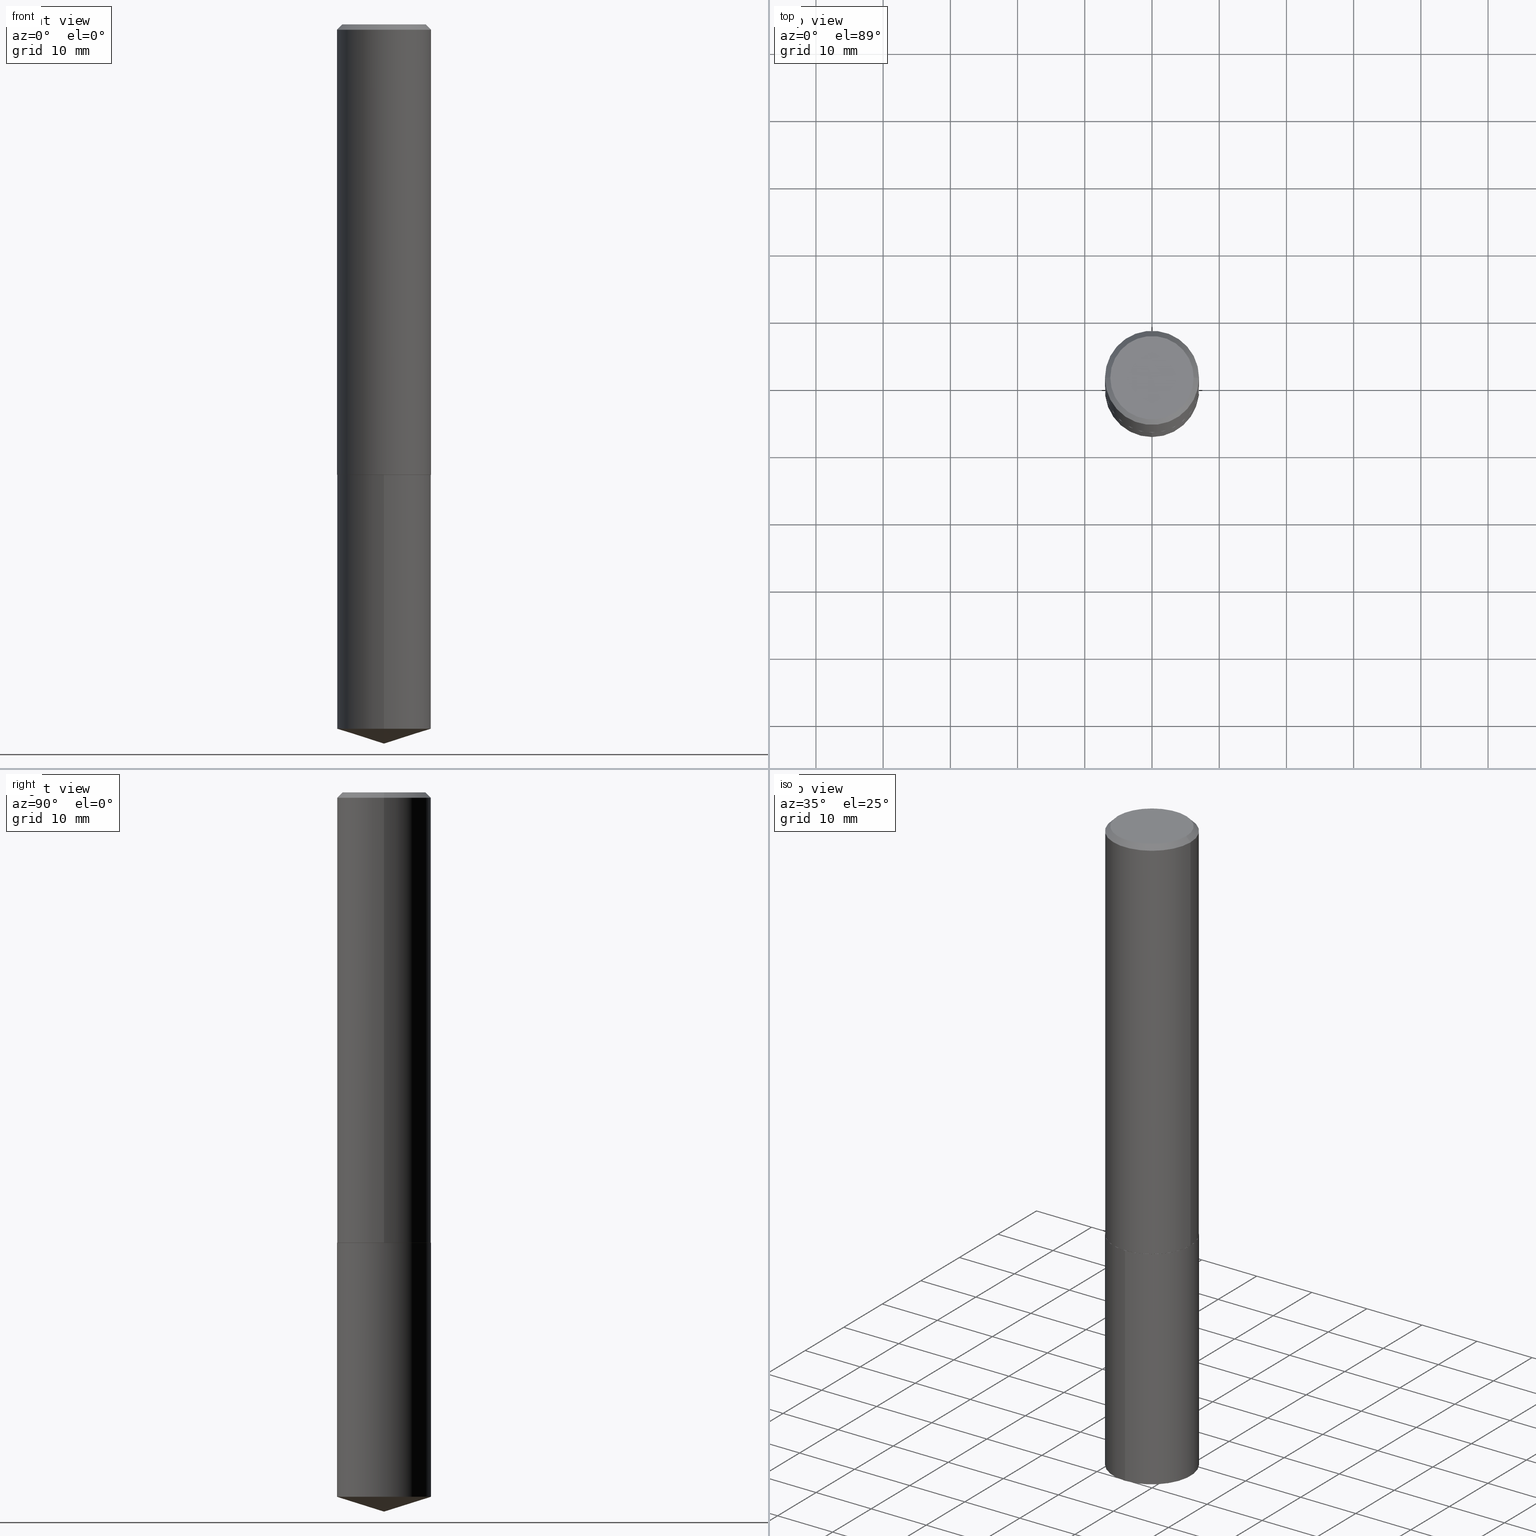
[diagram: canonical four-view strip — front | top / right | iso, engineering-drawing reading convention]
A machine part, canonical four-view strip (front | top / right | iso — engineering-drawing reading convention). The complete STEP part file that produces these views, byte-faithful:
ISO-10303-21;
HEADER;
FILE_DESCRIPTION (( 'STEP AP203' ),
    '1' );
FILE_NAME ('62116.STEP',
    '2024-04-23T06:14:14',
    ( '' ),
    ( '' ),
    'SwSTEP 2.0',
    'SolidWorks 2023',
    '' );
FILE_SCHEMA (( 'CONFIG_CONTROL_DESIGN' ));
ENDSEC;

DATA;
#1 = VECTOR ( 'NONE', #62, 39.37007874015748854 ) ;
#2 = AXIS2_PLACEMENT_3D ( 'NONE', #159, #371, #249 ) ;
#3 = CARTESIAN_POINT ( 'NONE',  ( 0.2756000000000000116, -2.033613305809184449E-15, -0.03125000000000021511 ) ) ;
#4 = CARTESIAN_POINT ( 'NONE',  ( -0.2751000000000002887, -7.252477182350298634E-15, -2.637799999999999923 ) ) ;
#5 = FACE_OUTER_BOUND ( 'NONE', #215, .T. ) ;
#6 = ADVANCED_FACE ( 'NONE', ( #25 ), #212, .T. ) ;
#7 = DIRECTION ( 'NONE',  ( -2.445468806185136597E-29, 3.491481338843145583E-15, 1.000000000000000000 ) ) ;
#8 = DIRECTION ( 'NONE',  ( 1.000000000000000000, -6.982962677686267499E-15, 4.876176775795935793E-29 ) ) ;
#9 = PRODUCT_DEFINITION_FORMATION_WITH_SPECIFIED_SOURCE ( 'ANY', '', #160, .NOT_KNOWN. ) ;
#10 = ORIENTED_EDGE ( 'NONE', *, *, #257, .T. ) ;
#11 = CARTESIAN_POINT ( 'NONE',  ( 1.958255779754937169E-15, 0.2755999999999907968, -2.637800000000000811 ) ) ;
#12 = EDGE_CURVE ( 'NONE', #295, #26, #334, .T. ) ;
#13 = DIRECTION ( 'NONE',  ( 1.000000000000000000, -6.982962677686264344E-15, 0.000000000000000000 ) ) ;
#14 = ORIENTED_EDGE ( 'NONE', *, *, #129, .T. ) ;
#15 = DIRECTION ( 'NONE',  ( -6.982962677686265922E-15, -1.000000000000000000, 3.964946289788480896E-15 ) ) ;
#16 = CONICAL_SURFACE ( 'NONE', #47, 124.8659371009155450, 1.265363707695892792 ) ;
#17 = AXIS2_PLACEMENT_3D ( 'NONE', #228, #173, #230 ) ;
#18 = DIRECTION ( 'NONE',  ( -2.444090534757923530E-29, 3.493455101973252593E-15, 1.000000000000000000 ) ) ;
#19 = CYLINDRICAL_SURFACE ( 'NONE', #246, 0.2756000000000000116 ) ;
#20 = AXIS2_PLACEMENT_3D ( 'NONE', #45, #81, #381 ) ;
#21 = COORDINATED_UNIVERSAL_TIME_OFFSET ( 5, 0, .BEHIND. ) ;
#22 = APPROVAL ( #326, 'UNSPECIFIED' ) ;
#23 = APPROVAL_STATUS ( 'not_yet_approved' ) ;
#24 = ORIENTED_EDGE ( 'NONE', *, *, #201, .T. ) ;
#25 = FACE_OUTER_BOUND ( 'NONE', #48, .T. ) ;
#26 = VERTEX_POINT ( 'NONE', #244 ) ;
#27 = PERSON_AND_ORGANIZATION ( #98, #174 ) ;
#28 = AXIS2_PLACEMENT_3D ( 'NONE', #165, #33, #8 ) ;
#29 = EDGE_CURVE ( 'NONE', #288, #61, #364, .T. ) ;
#30 = EDGE_LOOP ( 'NONE', ( #14, #237 ) ) ;
#31 = ORIENTED_EDGE ( 'NONE', *, *, #287, .F. ) ;
#32 = ORIENTED_EDGE ( 'NONE', *, *, #353, .T. ) ;
#33 = DIRECTION ( 'NONE',  ( -2.445468806185136597E-29, 3.491481338843145583E-15, 1.000000000000000000 ) ) ;
#34 = AXIS2_PLACEMENT_3D ( 'NONE', #192, #70, #306 ) ;
#35 = FACE_OUTER_BOUND ( 'NONE', #101, .T. ) ;
#36 = VERTEX_POINT ( 'NONE', #302 ) ;
#37 = DIRECTION ( 'NONE',  ( -6.982962677686266711E-15, -1.000000000000000000, 3.500519750498691021E-15 ) ) ;
#38 = ORIENTED_EDGE ( 'NONE', *, *, #171, .T. ) ;
#39 = CARTESIAN_POINT ( 'NONE',  ( 0.2756000000000001782, -1.924504513970336532E-15, 1.343874319409360828E-29 ) ) ;
#40 = LINE ( 'NONE', #248, #293 ) ;
#41 = CARTESIAN_POINT ( 'NONE',  ( -8.592442541040112697E-28, 1.228262798697039134E-13, 35.15747874015747954 ) ) ;
#42 = ADVANCED_FACE ( 'NONE', ( #372 ), #308, .F. ) ;
#43 = PRODUCT_DEFINITION_SHAPE ( 'NONE', 'NONE',  #361 ) ;
#44 = CARTESIAN_POINT ( 'NONE',  ( -5.188552583287908695E-46, 7.407877980016506241E-32, 2.121700579522789356E-17 ) ) ;
#45 = CARTESIAN_POINT ( 'NONE',  ( 6.450657616955153231E-29, -9.209829475600448681E-15, -2.637799999999999923 ) ) ;
#46 = CARTESIAN_POINT ( 'NONE',  ( 6.450657616955153231E-29, -9.209829475600448681E-15, -2.637799999999999923 ) ) ;
#47 = AXIS2_PLACEMENT_3D ( 'NONE', #41, #169, #281 ) ;
#48 = EDGE_LOOP ( 'NONE', ( #190, #109, #54, #66 ) ) ;
#49 = AXIS2_PLACEMENT_3D ( 'NONE', #143, #18, #15 ) ;
#50 = ADVANCED_FACE ( 'NONE', ( #108 ), #83, .T. ) ;
#51 = PERSON_AND_ORGANIZATION ( #98, #174 ) ;
#52 = CC_DESIGN_PERSON_AND_ORGANIZATION_ASSIGNMENT ( #241, #323, ( #9 ) ) ;
#53 = PERSON_AND_ORGANIZATION_ROLE ( 'classification_officer' ) ;
#54 = ORIENTED_EDGE ( 'NONE', *, *, #353, .F. ) ;
#55 = PERSON_AND_ORGANIZATION_ROLE ( 'creator' ) ;
#56 = DIMENSIONAL_EXPONENTS ( 1.000000000000000000, 0.000000000000000000, 0.000000000000000000, 0.000000000000000000, 0.000000000000000000, 0.000000000000000000, 0.000000000000000000 ) ;
#57 = EDGE_LOOP ( 'NONE', ( #140, #365 ) ) ;
#58 = CIRCLE ( 'NONE', #34, 0.2756000000000003447 ) ;
#59 = SECURITY_CLASSIFICATION ( '', '', #89 ) ;
#60 = ADVANCED_FACE ( 'NONE', ( #170 ), #276, .F. ) ;
#61 = VERTEX_POINT ( 'NONE', #3 ) ;
#62 = DIRECTION ( 'NONE',  ( 6.776566513254258926E-15, 0.9537169507482290420, 0.3007057995042661247 ) ) ;
#63 = ORIENTED_EDGE ( 'NONE', *, *, #129, .F. ) ;
#64 = CARTESIAN_POINT ( 'NONE',  ( 1.030331075538032453E-28, -1.470611617780333154E-14, -4.212600000000000122 ) ) ;
#65 = CARTESIAN_POINT ( 'NONE',  ( -5.188552583287908695E-46, 7.407877980016506241E-32, 2.121700579522789356E-17 ) ) ;
#66 = ORIENTED_EDGE ( 'NONE', *, *, #171, .F. ) ;
#67 = CONICAL_SURFACE ( 'NONE', #229, 0.2756000000000000116, 0.7853981633974446153 ) ;
#68 = CARTESIAN_POINT ( 'NONE',  ( 1.958255779754900487E-15, 0.2755999999999907968, -2.637800000000000811 ) ) ;
#69 = FACE_OUTER_BOUND ( 'NONE', #300, .T. ) ;
#70 = DIRECTION ( 'NONE',  ( -2.445468806185136597E-29, 3.491481338843145583E-15, 1.000000000000000000 ) ) ;
#71 = UNCERTAINTY_MEASURE_WITH_UNIT (LENGTH_MEASURE( 1.000000000000000082E-05 ), #145, 'distance_accuracy_value', 'NONE');
#72 = CARTESIAN_POINT ( 'NONE',  ( 6.449434882552060429E-29, -9.208083734931026389E-15, -2.637299999999999756 ) ) ;
#73 = EDGE_CURVE ( 'NONE', #254, #126, #225, .T. ) ;
#74 = CARTESIAN_POINT ( 'NONE',  ( 6.449434882552060429E-29, -9.208083734931026389E-15, -2.637299999999999756 ) ) ;
#75 = DIRECTION ( 'NONE',  ( -1.000000000000000000, 6.982962677686267499E-15, 0.000000000000000000 ) ) ;
#76 = AXIS2_PLACEMENT_3D ( 'NONE', #142, #115, #261 ) ;
#77 = FACE_OUTER_BOUND ( 'NONE', #219, .T. ) ;
#78 = FACE_OUTER_BOUND ( 'NONE', #57, .T. ) ;
#79 = CARTESIAN_POINT ( 'NONE',  ( 6.450657616955153231E-29, -9.209829475600448681E-15, -2.637799999999999923 ) ) ;
#80 = ADVANCED_FACE ( 'NONE', ( #5 ), #344, .T. ) ;
#81 = DIRECTION ( 'NONE',  ( -2.445468806185136597E-29, 3.491481338843145583E-15, 1.000000000000000000 ) ) ;
#82 = CARTESIAN_POINT ( 'NONE',  ( -1.924504513970270662E-15, -0.2756000000000092265, -2.637799999999999034 ) ) ;
#83 = CONICAL_SURFACE ( 'NONE', #387, 0.2756000000000000116, 0.7853981633974446153 ) ;
#84 = CIRCLE ( 'NONE', #147, 0.2756000000000003447 ) ;
#85 = CARTESIAN_POINT ( 'NONE',  ( 0.2756000000000003447, -1.113258824890136292E-14, -2.637299999999999756 ) ) ;
#86 = DIRECTION ( 'NONE',  ( 1.000000000000000000, 0.000000000000000000, 0.000000000000000000 ) ) ;
#87 = EDGE_CURVE ( 'NONE', #210, #218, #259, .T. ) ;
#88 = PERSON_AND_ORGANIZATION_ROLE ( 'creator' ) ;
#89 = SECURITY_CLASSIFICATION_LEVEL ( 'unclassified' ) ;
#90 = ORIENTED_EDGE ( 'NONE', *, *, #287, .T. ) ;
#91 = COORDINATED_UNIVERSAL_TIME_OFFSET ( 5, 0, .BEHIND. ) ;
#92 = APPROVAL ( #23, 'UNSPECIFIED' ) ;
#93 = PERSON_AND_ORGANIZATION ( #98, #174 ) ;
#94 = ORIENTED_EDGE ( 'NONE', *, *, #87, .T. ) ;
#95 = VECTOR ( 'NONE', #220, 39.37007874015748143 ) ;
#96 = CARTESIAN_POINT ( 'NONE',  ( 0.2756000000000000116, -1.999862040024683603E-15, -0.03125000000000021511 ) ) ;
#97 = EDGE_LOOP ( 'NONE', ( #213, #162, #226 ) ) ;
#98 = PERSON ( 'UNSPECIFIED', 'UNSPECIFIED', 'UNSPECIFIED', ('UNSPECIFIED'), ('UNSPECIFIED'), ('UNSPECIFIED') ) ;
#99 = CARTESIAN_POINT ( 'NONE',  ( 6.450657616955153231E-29, -9.209829475600448681E-15, -2.637799999999999923 ) ) ;
#100 = CARTESIAN_POINT ( 'NONE',  ( 6.450657616955153231E-29, -9.209829475600448681E-15, -2.637799999999999923 ) ) ;
#101 = EDGE_LOOP ( 'NONE', ( #278, #335, #90, #153 ) ) ;
#102 = AXIS2_PLACEMENT_3D ( 'NONE', #251, #222, #203 ) ;
#103 = DIRECTION ( 'NONE',  ( -6.982962677686265922E-15, -1.000000000000000000, 3.964946289788480896E-15 ) ) ;
#104 = CIRCLE ( 'NONE', #118, 0.2443500000000000116 ) ;
#105 = ORIENTED_EDGE ( 'NONE', *, *, #144, .T. ) ;
#106 = FACE_OUTER_BOUND ( 'NONE', #195, .T. ) ;
#107 = EDGE_LOOP ( 'NONE', ( #327, #63, #322, #267 ) ) ;
#108 = FACE_OUTER_BOUND ( 'NONE', #107, .T. ) ;
#109 = ORIENTED_EDGE ( 'NONE', *, *, #73, .T. ) ;
#110 = DIRECTION ( 'NONE',  ( -2.445468806185136597E-29, 3.491481338843145583E-15, 1.000000000000000000 ) ) ;
#111 = LOCAL_TIME ( 2, 14, 14.00000000000000000, #149 ) ;
#112 = MANIFOLD_SOLID_BREP ( 'Body-Move/Copy2[2]', #141 ) ;
#113 = DIRECTION ( 'NONE',  ( 1.000000000000000000, -6.982962677686265922E-15, 4.876176775795935793E-29 ) ) ;
#114 = EDGE_CURVE ( 'NONE', #218, #303, #40, .T. ) ;
#115 = DIRECTION ( 'NONE',  ( -2.444090534757923530E-29, 3.493455101973252593E-15, 1.000000000000000000 ) ) ;
#116 = FACE_OUTER_BOUND ( 'NONE', #252, .T. ) ;
#117 = CONICAL_SURFACE ( 'NONE', #102, 0.2756000000000003447, 0.7853981633973459164 ) ;
#118 = AXIS2_PLACEMENT_3D ( 'NONE', #44, #110, #313 ) ;
#119 = ADVANCED_FACE ( 'NONE', ( #221 ), #16, .T. ) ;
#120 = CARTESIAN_POINT ( 'NONE',  ( -1.924504513970270662E-15, -0.2756000000000092265, -2.637799999999999034 ) ) ;
#121 = APPROVAL_ROLE ( '' ) ;
#122 = ORIENTED_EDGE ( 'NONE', *, *, #12, .F. ) ;
#123 = CONICAL_SURFACE ( 'NONE', #363, 0.2756000000000003447, 0.7853981633973459164 ) ;
#124 = CALENDAR_DATE ( 2024, 23, 4 ) ;
#125 = COORDINATED_UNIVERSAL_TIME_OFFSET ( 5, 0, .BEHIND. ) ;
#126 = VERTEX_POINT ( 'NONE', #11 ) ;
#127 = CARTESIAN_POINT ( 'NONE',  ( 6.450657616955153231E-29, -9.209829475600448681E-15, -2.637799999999999923 ) ) ;
#128 = LOCAL_TIME ( 2, 14, 14.00000000000000000, #125 ) ;
#129 = EDGE_CURVE ( 'NONE', #36, #288, #331, .T. ) ;
#130 = DIRECTION ( 'NONE',  ( -2.445468806185136597E-29, 3.491481338843145583E-15, 1.000000000000000000 ) ) ;
#131 = DIRECTION ( 'NONE',  ( 1.000000000000000000, -6.982962677686266711E-15, 4.876506540096803620E-29 ) ) ;
#132 = ORIENTED_EDGE ( 'NONE', *, *, #390, .T. ) ;
#133 = DIRECTION ( 'NONE',  ( -0.7071067811865449082, 2.468850131082229450E-15, -0.7071067811865501263 ) ) ;
#134 = ORIENTED_EDGE ( 'NONE', *, *, #232, .F. ) ;
#135 = AXIS2_PLACEMENT_3D ( 'NONE', #99, #130, #337 ) ;
#136 = CARTESIAN_POINT ( 'NONE',  ( 1.958255779754937169E-15, 0.2755999999999856342, -4.125703653784954739 ) ) ;
#137 = CC_DESIGN_APPROVAL ( #166, ( #9 ) ) ;
#138 = CC_DESIGN_PERSON_AND_ORGANIZATION_ASSIGNMENT ( #294, #55, ( #361 ) ) ;
#139 = DIRECTION ( 'NONE',  ( 2.445468806185136597E-29, -3.491481338843145583E-15, -1.000000000000000000 ) ) ;
#140 = ORIENTED_EDGE ( 'NONE', *, *, #87, .F. ) ;
#141 = CLOSED_SHELL ( 'NONE', ( #280, #80, #264, #291, #151, #250, #50, #60 ) ) ;
#142 = CARTESIAN_POINT ( 'NONE',  ( 1.008722885380268887E-28, -1.440775408616014137E-14, -4.125703653784953850 ) ) ;
#143 = CARTESIAN_POINT ( 'NONE',  ( 6.450657616955153231E-29, -9.209829475600448681E-15, -2.637799999999999923 ) ) ;
#144 = EDGE_CURVE ( 'NONE', #341, #303, #58, .T. ) ;
#145 =( CONVERSION_BASED_UNIT ( 'INCH', #289 ) LENGTH_UNIT ( ) NAMED_UNIT ( #56 ) );
#146 = VECTOR ( 'NONE', #343, 39.37007874015748143 ) ;
#147 = AXIS2_PLACEMENT_3D ( 'NONE', #74, #351, #13 ) ;
#148 = CALENDAR_DATE ( 2024, 23, 4 ) ;
#149 = COORDINATED_UNIVERSAL_TIME_OFFSET ( 5, 0, .BEHIND. ) ;
#150 = DATE_AND_TIME ( #124, #347 ) ;
#151 = ADVANCED_FACE ( 'NONE', ( #35 ), #117, .T. ) ;
#152 = APPLICATION_CONTEXT ( 'configuration controlled 3d designs of mechanical parts and assemblies' ) ;
#153 = ORIENTED_EDGE ( 'NONE', *, *, #390, .F. ) ;
#154 = LOCAL_TIME ( 2, 14, 14.00000000000000000, #21 ) ;
#155 = CARTESIAN_POINT ( 'NONE',  ( -0.2756000000000001782, 1.958255779754837378E-15, -1.355658510874252848E-29 ) ) ;
#156 = DIRECTION ( 'NONE',  ( -2.444090534757923530E-29, 3.493455101973252593E-15, 1.000000000000000000 ) ) ;
#157 = VECTOR ( 'NONE', #133, 39.37007874015748143 ) ;
#158 = AXIS2_PLACEMENT_3D ( 'NONE', #348, #382, #113 ) ;
#159 = CARTESIAN_POINT ( 'NONE',  ( 1.008722885380268887E-28, -1.440775408616014137E-14, -4.125703653784953850 ) ) ;
#160 = PRODUCT ( '62116', '62116', '', ( #299 ) ) ;
#161 = DIRECTION ( 'NONE',  ( 6.982962677686265922E-15, 1.000000000000000000, -3.493455101973252593E-15 ) ) ;
#162 = ORIENTED_EDGE ( 'NONE', *, *, #12, .T. ) ;
#163 = LINE ( 'NONE', #155, #146 ) ;
#164 = ORIENTED_EDGE ( 'NONE', *, *, #144, .F. ) ;
#165 = CARTESIAN_POINT ( 'NONE',  ( 0.000000000000000000, 0.000000000000000000, 0.000000000000000000 ) ) ;
#166 = APPROVAL ( #386, 'UNSPECIFIED' ) ;
#167 = AXIS2_PLACEMENT_3D ( 'NONE', #79, #231, #103 ) ;
#168 = CC_DESIGN_SECURITY_CLASSIFICATION ( #59, ( #9 ) ) ;
#169 = DIRECTION ( 'NONE',  ( -2.444090534757923530E-29, 3.493455101973252593E-15, 1.000000000000000000 ) ) ;
#170 = FACE_OUTER_BOUND ( 'NONE', #30, .T. ) ;
#171 = EDGE_CURVE ( 'NONE', #26, #325, #284, .T. ) ;
#172 = DIRECTION ( 'NONE',  ( 1.000000000000000000, -6.982962677686264344E-15, 0.000000000000000000 ) ) ;
#173 = DIRECTION ( 'NONE',  ( -2.445468806185136597E-29, 3.491481338843145583E-15, 1.000000000000000000 ) ) ;
#174 = ORGANIZATION ( 'UNSPECIFIED', 'UNSPECIFIED', '' ) ;
#175 = ORIENTED_EDGE ( 'NONE', *, *, #114, .T. ) ;
#176 = CARTESIAN_POINT ( 'NONE',  ( 1.029597578672122887E-28, -1.471652896257252543E-14, -4.212600000000000122 ) ) ;
#177 = CC_DESIGN_DATE_AND_TIME_ASSIGNMENT ( #384, #238, ( #59 ) ) ;
#178 = DIRECTION ( 'NONE',  ( 2.445468806185136597E-29, -3.491481338843145583E-15, -1.000000000000000000 ) ) ;
#179 = APPLICATION_PROTOCOL_DEFINITION ( 'international standard', 'config_control_design', 1994, #152 ) ;
#180 = CIRCLE ( 'NONE', #167, 0.2756000000000000116 ) ;
#181 = CIRCLE ( 'NONE', #17, 0.2756000000000000116 ) ;
#182 = ORIENTED_EDGE ( 'NONE', *, *, #73, .F. ) ;
#183 = COORDINATED_UNIVERSAL_TIME_OFFSET ( 5, 0, .BEHIND. ) ;
#184 = DIRECTION ( 'NONE',  ( -6.982962677686265922E-15, -1.000000000000000000, 3.964946289788480896E-15 ) ) ;
#185 = ORIENTED_EDGE ( 'NONE', *, *, #236, .F. ) ;
#186 = DATE_AND_TIME ( #329, #263 ) ;
#187 = CIRCLE ( 'NONE', #76, 0.2756000000000000116 ) ;
#188 =( NAMED_UNIT ( * ) SI_UNIT ( $, .STERADIAN. ) SOLID_ANGLE_UNIT ( ) );
#189 = DIRECTION ( 'NONE',  ( 0.7071067811865449082, -7.319954787623246579E-15, -0.7071067811865501263 ) ) ;
#190 = ORIENTED_EDGE ( 'NONE', *, *, #370, .T. ) ;
#191 = CYLINDRICAL_SURFACE ( 'NONE', #28, 0.2756000000000001782 ) ;
#192 = CARTESIAN_POINT ( 'NONE',  ( 6.449434882552060429E-29, -9.208083734931026389E-15, -2.637299999999999756 ) ) ;
#193 = LINE ( 'NONE', #64, #1 ) ;
#194 = EDGE_CURVE ( 'NONE', #126, #325, #180, .T. ) ;
#195 = EDGE_LOOP ( 'NONE', ( #94, #175, #164, #31 ) ) ;
#196 = DIRECTION ( 'NONE',  ( -2.445468806185136597E-29, 3.491481338843145583E-15, 1.000000000000000000 ) ) ;
#197 = VECTOR ( 'NONE', #189, 39.37007874015748143 ) ;
#198 = CARTESIAN_POINT ( 'NONE',  ( 7.642090019328604414E-31, -1.091087918388490513E-16, -0.03125000000000021511 ) ) ;
#199 = VECTOR ( 'NONE', #202, 39.37007874015748143 ) ;
#200 = DIRECTION ( 'NONE',  ( -1.000000000000000000, 6.982962677686265922E-15, -4.876176775795935793E-29 ) ) ;
#201 = EDGE_CURVE ( 'NONE', #295, #254, #193, .T. ) ;
#202 = DIRECTION ( 'NONE',  ( 0.7071067811864750752, -2.468850131081498176E-15, 0.7071067811866199593 ) ) ;
#203 = DIRECTION ( 'NONE',  ( 1.000000000000000000, -6.982962677686264344E-15, 0.000000000000000000 ) ) ;
#204 = CARTESIAN_POINT ( 'NONE',  ( -0.2756000000000003447, -7.249827955176188222E-15, -2.637299999999999756 ) ) ;
#205 = CARTESIAN_POINT ( 'NONE',  ( 7.642090019328604414E-31, -1.091087918388490513E-16, -0.03125000000000021511 ) ) ;
#206 = CIRCLE ( 'NONE', #255, 0.2756000000000000116 ) ;
#207 = EDGE_CURVE ( 'NONE', #341, #61, #305, .T. ) ;
#208 = PERSON_AND_ORGANIZATION ( #98, #174 ) ;
#209 = VECTOR ( 'NONE', #389, 39.37007874015748143 ) ;
#210 = VERTEX_POINT ( 'NONE', #279 ) ;
#211 = PERSON_AND_ORGANIZATION ( #98, #174 ) ;
#212 = CYLINDRICAL_SURFACE ( 'NONE', #245, 0.2756000000000000116 ) ;
#213 = ORIENTED_EDGE ( 'NONE', *, *, #201, .F. ) ;
#214 = APPROVAL_DATE_TIME ( #292, #92 ) ;
#215 = EDGE_LOOP ( 'NONE', ( #105, #243, #373, #240 ) ) ;
#216 = CARTESIAN_POINT ( 'NONE',  ( 0.000000000000000000, 0.000000000000000000, 0.000000000000000000 ) ) ;
#217 = ADVANCED_FACE ( 'NONE', ( #247 ), #362, .T. ) ;
#218 = VERTEX_POINT ( 'NONE', #4 ) ;
#219 = EDGE_LOOP ( 'NONE', ( #182, #10, #38, #332 ) ) ;
#220 = DIRECTION ( 'NONE',  ( -2.445468806185136877E-29, 3.491481338843145188E-15, 1.000000000000000000 ) ) ;
#221 = FACE_OUTER_BOUND ( 'NONE', #97, .T. ) ;
#222 = DIRECTION ( 'NONE',  ( -2.445468806185136597E-29, 3.491481338843145583E-15, 1.000000000000000000 ) ) ;
#223 = AXIS2_PLACEMENT_3D ( 'NONE', #277, #340, #200 ) ;
#224 = LINE ( 'NONE', #366, #157 ) ;
#225 = LINE ( 'NONE', #68, #338 ) ;
#226 = ORIENTED_EDGE ( 'NONE', *, *, #257, .F. ) ;
#227 = AXIS2_PLACEMENT_3D ( 'NONE', #301, #336, #37 ) ;
#228 = CARTESIAN_POINT ( 'NONE',  ( 7.642090019328604414E-31, -1.091087918388490513E-16, -0.03125000000000021511 ) ) ;
#229 = AXIS2_PLACEMENT_3D ( 'NONE', #198, #178, #282 ) ;
#230 = DIRECTION ( 'NONE',  ( 1.000000000000000000, -6.982962677686267499E-15, 0.000000000000000000 ) ) ;
#231 = DIRECTION ( 'NONE',  ( -2.444090534757923530E-29, 3.493455101973252593E-15, 1.000000000000000000 ) ) ;
#232 = EDGE_CURVE ( 'NONE', #303, #258, #163, .T. ) ;
#233 = PLANE ( 'NONE',  #158 ) ;
#234 = DIRECTION ( 'NONE',  ( 0.000000000000000000, 0.000000000000000000, 1.000000000000000000 ) ) ;
#235 = PERSON_AND_ORGANIZATION_ROLE ( 'design_owner' ) ;
#236 = EDGE_CURVE ( 'NONE', #36, #258, #224, .T. ) ;
#237 = ORIENTED_EDGE ( 'NONE', *, *, #319, .T. ) ;
#238 = DATE_TIME_ROLE ( 'classification_date' ) ;
#239 = CIRCLE ( 'NONE', #49, 0.2756000000000000116 ) ;
#240 = ORIENTED_EDGE ( 'NONE', *, *, #207, .F. ) ;
#241 = PERSON_AND_ORGANIZATION ( #98, #174 ) ;
#242 = EDGE_LOOP ( 'NONE', ( #122, #24, #309 ) ) ;
#243 = ORIENTED_EDGE ( 'NONE', *, *, #232, .T. ) ;
#244 = CARTESIAN_POINT ( 'NONE',  ( -1.924504513970233980E-15, -0.2756000000000144445, -4.125703653784952074 ) ) ;
#245 = AXIS2_PLACEMENT_3D ( 'NONE', #127, #156, #184 ) ;
#246 = AXIS2_PLACEMENT_3D ( 'NONE', #46, #312, #286 ) ;
#247 = FACE_OUTER_BOUND ( 'NONE', #242, .T. ) ;
#248 = CARTESIAN_POINT ( 'NONE',  ( -0.2756000000000003447, -7.249827955176188222E-15, -2.637299999999999756 ) ) ;
#249 = DIRECTION ( 'NONE',  ( -6.982962677686265922E-15, -1.000000000000000000, 3.964946289788480896E-15 ) ) ;
#250 = ADVANCED_FACE ( 'NONE', ( #69 ), #191, .T. ) ;
#251 = CARTESIAN_POINT ( 'NONE',  ( 6.449434882552060429E-29, -9.208083734931026389E-15, -2.637299999999999756 ) ) ;
#252 = EDGE_LOOP ( 'NONE', ( #256, #272, #360, #185 ) ) ;
#253 = DIRECTION ( 'NONE',  ( 1.000000000000000000, -6.982962677686267499E-15, 4.876176775795935793E-29 ) ) ;
#254 = VERTEX_POINT ( 'NONE', #136 ) ;
#255 = AXIS2_PLACEMENT_3D ( 'NONE', #205, #283, #262 ) ;
#256 = ORIENTED_EDGE ( 'NONE', *, *, #319, .F. ) ;
#257 = EDGE_CURVE ( 'NONE', #254, #26, #377, .T. ) ;
#258 = VERTEX_POINT ( 'NONE', #368 ) ;
#259 = CIRCLE ( 'NONE', #135, 0.2751000000000002887 ) ;
#260 =( LENGTH_UNIT ( ) NAMED_UNIT ( * ) SI_UNIT ( $, .METRE. ) );
#261 = DIRECTION ( 'NONE',  ( -6.982962677686265922E-15, -1.000000000000000000, 3.964946289788480896E-15 ) ) ;
#262 = DIRECTION ( 'NONE',  ( 1.000000000000000000, -6.982962677686267499E-15, 0.000000000000000000 ) ) ;
#263 = LOCAL_TIME ( 2, 14, 14.00000000000000000, #91 ) ;
#264 = ADVANCED_FACE ( 'NONE', ( #106 ), #123, .T. ) ;
#265 = DATE_TIME_ROLE ( 'creation_date' ) ;
#266 = CALENDAR_DATE ( 2024, 23, 4 ) ;
#267 = ORIENTED_EDGE ( 'NONE', *, *, #342, .T. ) ;
#268 = DATE_AND_TIME ( #148, #154 ) ;
#269 = AXIS2_PLACEMENT_3D ( 'NONE', #216, #234, #86 ) ;
#270 = CARTESIAN_POINT ( 'NONE',  ( 1.029597578672122887E-28, -1.471652896257252543E-14, -4.212600000000000122 ) ) ;
#271 = APPLICATION_PROTOCOL_DEFINITION ( 'international standard', 'config_control_design', 1994, #320 ) ;
#272 = ORIENTED_EDGE ( 'NONE', *, *, #29, .T. ) ;
#273 = SHAPE_DEFINITION_REPRESENTATION ( #43, #290 ) ;
#274 = APPROVAL_PERSON_ORGANIZATION ( #93, #92, #355 ) ;
#275 = PRODUCT_RELATED_PRODUCT_CATEGORY ( 'detail', '', ( #160 ) ) ;
#276 = PLANE ( 'NONE',  #223 ) ;
#277 = CARTESIAN_POINT ( 'NONE',  ( -2.594276291643954347E-46, 3.703938990008253121E-32, 1.060850289761394678E-17 ) ) ;
#278 = ORIENTED_EDGE ( 'NONE', *, *, #114, .F. ) ;
#279 = CARTESIAN_POINT ( 'NONE',  ( 0.2751000000000002887, -1.113084250823194221E-14, -2.637799999999999923 ) ) ;
#280 = ADVANCED_FACE ( 'NONE', ( #116 ), #67, .T. ) ;
#281 = DIRECTION ( 'NONE',  ( -6.982962677686266711E-15, -1.000000000000000000, 3.500519750498691021E-15 ) ) ;
#282 = DIRECTION ( 'NONE',  ( -1.000000000000000000, 6.982962677686267499E-15, 0.000000000000000000 ) ) ;
#283 = DIRECTION ( 'NONE',  ( -2.445468806185136597E-29, 3.491481338843145583E-15, 1.000000000000000000 ) ) ;
#284 = LINE ( 'NONE', #82, #316 ) ;
#285 = AXIS2_PLACEMENT_3D ( 'NONE', #369, #196, #253 ) ;
#286 = DIRECTION ( 'NONE',  ( -6.982962677686265922E-15, -1.000000000000000000, 3.964946289788480896E-15 ) ) ;
#287 = EDGE_CURVE ( 'NONE', #210, #341, #380, .T. ) ;
#288 = VERTEX_POINT ( 'NONE', #318 ) ;
#289 = LENGTH_MEASURE_WITH_UNIT ( LENGTH_MEASURE( 0.02539999999999999897 ), #260 );
#290 = ADVANCED_BREP_SHAPE_REPRESENTATION ( '62116', ( #379, #112, #269 ), #339 ) ;
#291 = ADVANCED_FACE ( 'NONE', ( #78 ), #233, .F. ) ;
#292 = DATE_AND_TIME ( #330, #128 ) ;
#293 = VECTOR ( 'NONE', #367, 39.37007874015748143 ) ;
#294 = PERSON_AND_ORGANIZATION ( #98, #174 ) ;
#295 = VERTEX_POINT ( 'NONE', #176 ) ;
#296 = APPROVAL_DATE_TIME ( #186, #22 ) ;
#297 = CC_DESIGN_DATE_AND_TIME_ASSIGNMENT ( #268, #265, ( #361 ) ) ;
#298 = CLOSED_SHELL ( 'NONE', ( #6, #217, #119, #349, #42 ) ) ;
#299 = MECHANICAL_CONTEXT ( 'NONE', #320, 'mechanical' ) ;
#300 = EDGE_LOOP ( 'NONE', ( #134, #132, #315, #358 ) ) ;
#301 = CARTESIAN_POINT ( 'NONE',  ( -8.592442541040112697E-28, 1.228262798697039134E-13, 35.15747874015747954 ) ) ;
#302 = CARTESIAN_POINT ( 'NONE',  ( -0.2443500000000000116, 1.760841326212062881E-15, 2.121700579521577098E-17 ) ) ;
#303 = VERTEX_POINT ( 'NONE', #204 ) ;
#304 = EDGE_CURVE ( 'NONE', #218, #210, #311, .T. ) ;
#305 = LINE ( 'NONE', #39, #95 ) ;
#306 = DIRECTION ( 'NONE',  ( 1.000000000000000000, -6.982962677686264344E-15, 0.000000000000000000 ) ) ;
#307 = DIRECTION ( 'NONE',  ( -2.444090534757923810E-29, 3.493455101973252593E-15, 1.000000000000000000 ) ) ;
#308 = PLANE ( 'NONE',  #385 ) ;
#309 = ORIENTED_EDGE ( 'NONE', *, *, #370, .F. ) ;
#310 = CARTESIAN_POINT ( 'NONE',  ( 7.642090019328604414E-31, -1.091087918388490513E-16, -0.03125000000000021511 ) ) ;
#311 = CIRCLE ( 'NONE', #20, 0.2751000000000002887 ) ;
#312 = DIRECTION ( 'NONE',  ( -2.444090534757923530E-29, 3.493455101973252593E-15, 1.000000000000000000 ) ) ;
#313 = DIRECTION ( 'NONE',  ( 1.000000000000000000, -6.982962677686266711E-15, 4.876506540096803620E-29 ) ) ;
#314 = DESIGN_CONTEXT ( 'detailed design', #152, 'design' ) ;
#315 = ORIENTED_EDGE ( 'NONE', *, *, #207, .T. ) ;
#316 = VECTOR ( 'NONE', #350, 39.37007874015748143 ) ;
#317 = CC_DESIGN_APPROVAL ( #92, ( #361 ) ) ;
#318 = CARTESIAN_POINT ( 'NONE',  ( 0.2443500000000000116, -1.838112362890078477E-15, 2.121700579524028730E-17 ) ) ;
#319 = EDGE_CURVE ( 'NONE', #288, #36, #104, .T. ) ;
#320 = APPLICATION_CONTEXT ( 'configuration controlled 3d designs of mechanical parts and assemblies' ) ;
#321 =( NAMED_UNIT ( * ) PLANE_ANGLE_UNIT ( ) SI_UNIT ( $, .RADIAN. ) );
#322 = ORIENTED_EDGE ( 'NONE', *, *, #236, .T. ) ;
#323 = PERSON_AND_ORGANIZATION_ROLE ( 'design_supplier' ) ;
#324 = APPROVAL_PERSON_ORGANIZATION ( #383, #166, #121 ) ;
#325 = VERTEX_POINT ( 'NONE', #120 ) ;
#326 = APPROVAL_STATUS ( 'not_yet_approved' ) ;
#327 = ORIENTED_EDGE ( 'NONE', *, *, #29, .F. ) ;
#328 = CC_DESIGN_PERSON_AND_ORGANIZATION_ASSIGNMENT ( #208, #88, ( #9 ) ) ;
#329 = CALENDAR_DATE ( 2024, 23, 4 ) ;
#330 = CALENDAR_DATE ( 2024, 23, 4 ) ;
#331 = CIRCLE ( 'NONE', #346, 0.2443500000000000116 ) ;
#332 = ORIENTED_EDGE ( 'NONE', *, *, #194, .F. ) ;
#333 = CC_DESIGN_PERSON_AND_ORGANIZATION_ASSIGNMENT ( #51, #235, ( #160 ) ) ;
#334 = LINE ( 'NONE', #270, #209 ) ;
#335 = ORIENTED_EDGE ( 'NONE', *, *, #304, .T. ) ;
#336 = DIRECTION ( 'NONE',  ( -2.444090534757923530E-29, 3.493455101973252593E-15, 1.000000000000000000 ) ) ;
#337 = DIRECTION ( 'NONE',  ( 1.000000000000000000, -6.982962677686267499E-15, 0.000000000000000000 ) ) ;
#338 = VECTOR ( 'NONE', #307, 39.37007874015748143 ) ;
#339 =( GEOMETRIC_REPRESENTATION_CONTEXT ( 3 ) GLOBAL_UNCERTAINTY_ASSIGNED_CONTEXT ( ( #71 ) ) GLOBAL_UNIT_ASSIGNED_CONTEXT ( ( #145, #321, #188 ) ) REPRESENTATION_CONTEXT ( 'NONE', 'WORKASPACE' ) );
#340 = DIRECTION ( 'NONE',  ( 2.438088387897960049E-29, -3.491481338843145188E-15, -1.000000000000000000 ) ) ;
#341 = VERTEX_POINT ( 'NONE', #85 ) ;
#342 = EDGE_CURVE ( 'NONE', #258, #61, #181, .T. ) ;
#343 = DIRECTION ( 'NONE',  ( -2.445468806185136877E-29, 3.491481338843145188E-15, 1.000000000000000000 ) ) ;
#344 = CYLINDRICAL_SURFACE ( 'NONE', #285, 0.2756000000000001782 ) ;
#345 = DIRECTION ( 'NONE',  ( 2.444090534757923250E-29, -3.493455101973252593E-15, -1.000000000000000000 ) ) ;
#346 = AXIS2_PLACEMENT_3D ( 'NONE', #65, #7, #131 ) ;
#347 = LOCAL_TIME ( 2, 14, 14.00000000000000000, #183 ) ;
#348 = CARTESIAN_POINT ( 'NONE',  ( 6.450657616955153231E-29, -9.209829475600448681E-15, -2.637799999999999923 ) ) ;
#349 = ADVANCED_FACE ( 'NONE', ( #77 ), #19, .T. ) ;
#350 = DIRECTION ( 'NONE',  ( -2.444090534757923810E-29, 3.493455101973252593E-15, 1.000000000000000000 ) ) ;
#351 = DIRECTION ( 'NONE',  ( -2.445468806185136597E-29, 3.491481338843145583E-15, 1.000000000000000000 ) ) ;
#352 = APPROVAL_PERSON_ORGANIZATION ( #211, #22, #357 ) ;
#353 = EDGE_CURVE ( 'NONE', #325, #126, #239, .T. ) ;
#354 = APPROVAL_DATE_TIME ( #150, #166 ) ;
#355 = APPROVAL_ROLE ( '' ) ;
#356 = EDGE_CURVE ( 'NONE', #61, #258, #206, .T. ) ;
#357 = APPROVAL_ROLE ( '' ) ;
#358 = ORIENTED_EDGE ( 'NONE', *, *, #342, .F. ) ;
#359 = EDGE_LOOP ( 'NONE', ( #32, #376 ) ) ;
#360 = ORIENTED_EDGE ( 'NONE', *, *, #356, .T. ) ;
#361 = PRODUCT_DEFINITION ( 'UNKNOWN', '', #9, #314 ) ;
#362 = CONICAL_SURFACE ( 'NONE', #227, 124.8659371009155450, 1.265363707695892792 ) ;
#363 = AXIS2_PLACEMENT_3D ( 'NONE', #72, #378, #172 ) ;
#364 = LINE ( 'NONE', #96, #197 ) ;
#365 = ORIENTED_EDGE ( 'NONE', *, *, #304, .F. ) ;
#366 = CARTESIAN_POINT ( 'NONE',  ( -0.2756000000000000116, 1.815395722131486248E-15, -0.03125000000000021511 ) ) ;
#367 = DIRECTION ( 'NONE',  ( -0.7071067811864750752, 7.493145998870092258E-15, 0.7071067811866199593 ) ) ;
#368 = CARTESIAN_POINT ( 'NONE',  ( -0.2756000000000000116, -2.700340483630098789E-15, -0.03125000000000021511 ) ) ;
#369 = CARTESIAN_POINT ( 'NONE',  ( 0.000000000000000000, 0.000000000000000000, 0.000000000000000000 ) ) ;
#370 = EDGE_CURVE ( 'NONE', #26, #254, #187, .T. ) ;
#371 = DIRECTION ( 'NONE',  ( -2.444090534757923530E-29, 3.493455101973252593E-15, 1.000000000000000000 ) ) ;
#372 = FACE_OUTER_BOUND ( 'NONE', #359, .T. ) ;
#373 = ORIENTED_EDGE ( 'NONE', *, *, #356, .F. ) ;
#374 = CARTESIAN_POINT ( 'NONE',  ( 0.2756000000000003447, -1.113258824890136292E-14, -2.637299999999999756 ) ) ;
#375 = CC_DESIGN_PERSON_AND_ORGANIZATION_ASSIGNMENT ( #27, #53, ( #59 ) ) ;
#376 = ORIENTED_EDGE ( 'NONE', *, *, #194, .T. ) ;
#377 = CIRCLE ( 'NONE', #2, 0.2756000000000000116 ) ;
#378 = DIRECTION ( 'NONE',  ( -2.445468806185136597E-29, 3.491481338843145583E-15, 1.000000000000000000 ) ) ;
#379 = MANIFOLD_SOLID_BREP ( 'Body-Move/Copy2[1]', #298 ) ;
#380 = LINE ( 'NONE', #374, #199 ) ;
#381 = DIRECTION ( 'NONE',  ( 1.000000000000000000, -6.982962677686267499E-15, 0.000000000000000000 ) ) ;
#382 = DIRECTION ( 'NONE',  ( -2.438088387897960049E-29, 3.491481338843145188E-15, 1.000000000000000000 ) ) ;
#383 = PERSON_AND_ORGANIZATION ( #98, #174 ) ;
#384 = DATE_AND_TIME ( #266, #111 ) ;
#385 = AXIS2_PLACEMENT_3D ( 'NONE', #100, #345, #161 ) ;
#386 = APPROVAL_STATUS ( 'not_yet_approved' ) ;
#387 = AXIS2_PLACEMENT_3D ( 'NONE', #310, #139, #75 ) ;
#388 = CC_DESIGN_APPROVAL ( #22, ( #59 ) ) ;
#389 = DIRECTION ( 'NONE',  ( -6.659769872151635244E-15, -0.9537169507482271547, 0.3007057995042727860 ) ) ;
#390 = EDGE_CURVE ( 'NONE', #303, #341, #84, .T. ) ;
ENDSEC;
END-ISO-10303-21;
